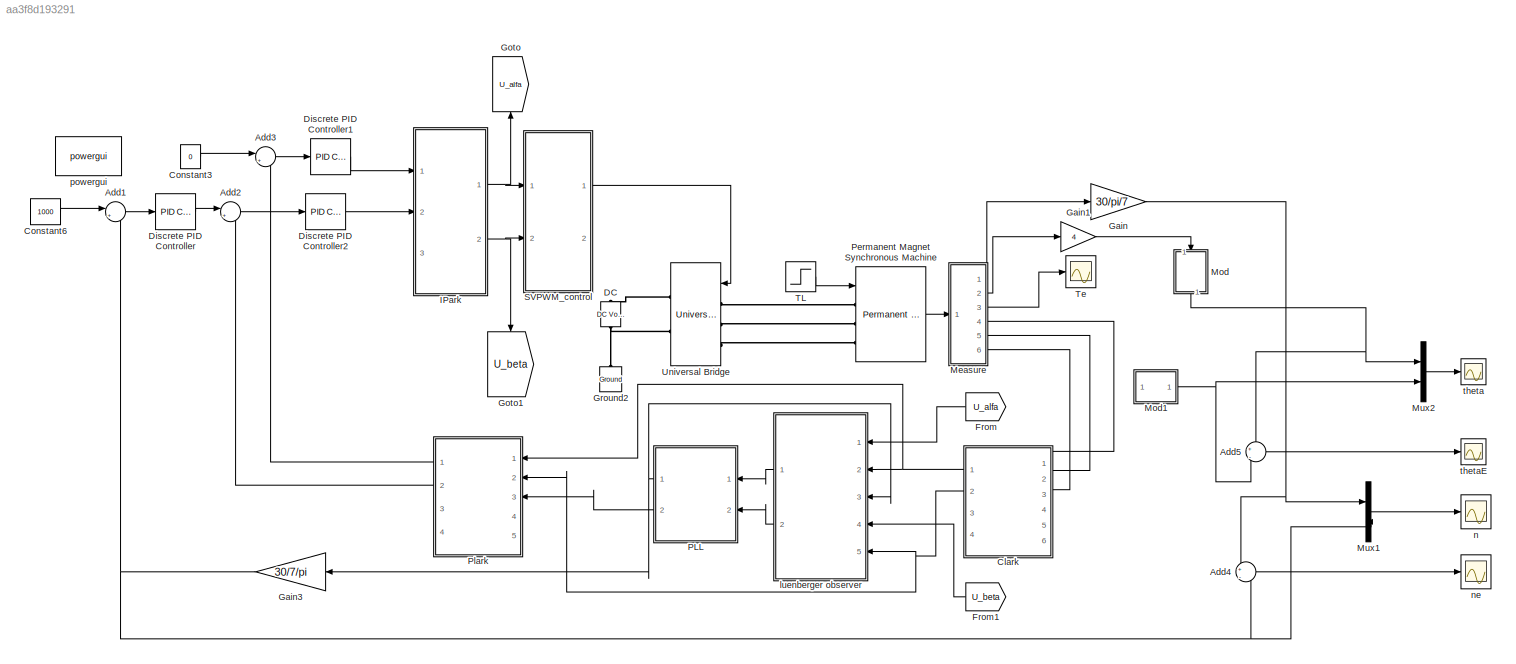
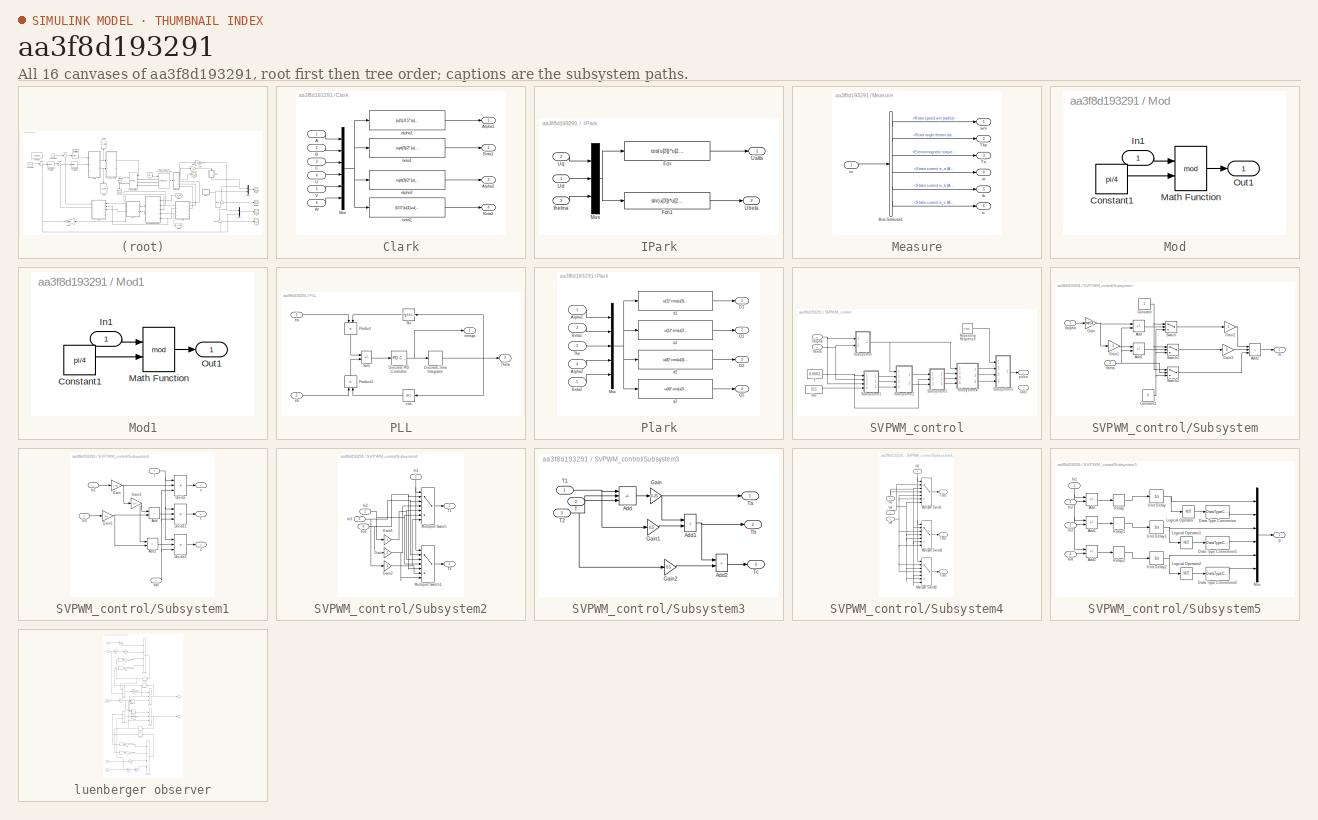
[diagram: thumbnail index - all 16 canvases of the model, root first then tree order]
MODEL slx_aa3f8d193291
KIND model
CONFIG AbsTol = auto
CONFIG EnableMultiTasking = on
CONFIG FixedStep = 2e-7
CONFIG InitFcn = R = 2.8750;\nL = 8.5e-3;
CONFIG MaxStep = auto
CONFIG MinStep = auto
CONFIG RelTol = 1e-4
CONFIG SampleTimeConstraint = Unconstrained
CONFIG SolverName = ode3
CONFIG StartTime = 0.0
CONFIG StopTime = 0.05
WORKSPACE source: mxarray member
WORKSPACE G1 = -4000
WORKSPACE G2 = 14000
WORKSPACE Param: Simulink.Parameter (value not decoded)
WORKSPACE Ts = 1e-06
BLOCK [Sum] Add1
  Inputs = |+-
  Ports = [2, 1]
BLOCK [Sum] Add2
  Inputs = |+-
  Ports = [2, 1]
BLOCK [Sum] Add3
  Inputs = |+-
  Ports = [2, 1]
BLOCK [Sum] Add4
  Inputs = +|-
  Ports = [2, 1]
BLOCK [Sum] Add5
  Inputs = +|-
  Ports = [2, 1]
BLOCK [SubSystem] Clark
  NameLocation = top
  Ports = [6, 4]
  RequestExecContextInheritance = off
BLOCK [Inport] Clark/A
BLOCK [Outport] Clark/Alpha1
BLOCK [Outport] Clark/Alpha2
  Port = 3
BLOCK [Inport] Clark/B
  Port = 2
BLOCK [Outport] Clark/Beta1
  Port = 2
BLOCK [Outport] Clark/Beta2
  Port = 4
BLOCK [Inport] Clark/C
  Port = 3
BLOCK [Mux] Clark/Mux
  DisplayOption = bar
  Inputs = 6
  Ports = [6, 1]
BLOCK [Inport] Clark/U
  Port = 4
BLOCK [Inport] Clark/V
  Port = 5
BLOCK [Inport] Clark/W
  Port = 6
BLOCK [Fcn] Clark/alpha1
  Expr = (u(1)-0.5*(u(2)+u(3)))*2/3
BLOCK [Fcn] Clark/alpha2
  Expr = sqrt(3)/2*(u(1)-u(2))*2/3
BLOCK [Fcn] Clark/beta1
  Expr = sqrt(3)/2*(u(2)-u(3))*2/3
BLOCK [Fcn] Clark/beta2
  Expr = (0.5*(u(1)+u(2))-u(3))*2/3
BLOCK [Constant] Constant3
  Value = 0
BLOCK [Constant] Constant6
  Value = 1000
BLOCK [Reference] DC   REF=spsDCVoltageSourceLib/DC Voltage Source
  NameLocation = right
  Ports = [0, 0, 0, 0, 0, 1, 1]
  SourceBlock = spsDCVoltageSourceLib/DC Voltage Source
  SourceProductBaseCode = PS
  SourceType = DC Voltage Source
BLOCK [Reference] Discrete PID Controller  REF=slpidlib/PID Controller
  Ports = [1, 1]
  SourceBlock = slpidlib/PID Controller
  SourceProductBaseCode = SL
  SourceType = PID 1dof
BLOCK [Reference] Discrete PID Controller1  REF=slpidlib/PID Controller
  Ports = [1, 1]
  SourceBlock = slpidlib/PID Controller
  SourceProductBaseCode = SL
  SourceType = PID 1dof
BLOCK [Reference] Discrete PID Controller2  REF=slpidlib/PID Controller
  Ports = [1, 1]
  SourceBlock = slpidlib/PID Controller
  SourceProductBaseCode = SL
  SourceType = PID 1dof
BLOCK [From] From
  GotoTag = U_alfa
  NameLocation = top
BLOCK [From] From1
  GotoTag = U_beta
  NameLocation = top
BLOCK [Gain] Gain
  Gain = 30/pi/7
BLOCK [Gain] Gain1
  Gain = 4
BLOCK [Gain] Gain3
  Gain = 30/7/pi
  NameLocation = top
BLOCK [Goto] Goto
  GotoTag = U_alfa
  NameLocation = right
BLOCK [Goto] Goto1
  GotoTag = U_beta
  NameLocation = left
BLOCK [Reference] Ground2  REF=spsGroundLib/Ground
  NameLocation = right
  Ports = [0, 0, 0, 0, 0, 1]
  SourceBlock = spsGroundLib/Ground
  SourceProductBaseCode = PS
  SourceType = Ground
BLOCK [SubSystem] IPark
  Ports = [3, 2]
  RequestExecContextInheritance = off
BLOCK [Fcn] IPark/Fcn
  Expr = cos(u[3])*u[2]-sin(u[3])*u[1]
BLOCK [Fcn] IPark/Fcn1
  Expr = sin(u[3])*u[2]+cos(u[3])*u[1]
BLOCK [Mux] IPark/Mux
  DisplayOption = bar
  Inputs = 3
  Ports = [3, 1]
BLOCK [Outport] IPark/Ualfa
BLOCK [Outport] IPark/Ubeta
  Port = 2
BLOCK [Inport] IPark/Ud
BLOCK [Inport] IPark/Uq
  Port = 2
BLOCK [Inport] IPark/thetma
  Port = 3
BLOCK [SubSystem] Measure
  Ports = [1, 6]
  RequestExecContextInheritance = off
BLOCK [BusSelector] Measure/Bus Selector1
  OutputSignals = Rotor speed wm (rad/s),Rotor angle thetam (rad),Electromagnetic torque Te (N*m),Stator current is_a (A),Stator current is_b (A),Stator current is_c (A)
  Ports = [1, 6]
BLOCK [Outport] Measure/Te
  Port = 3
BLOCK [Outport] Measure/The
  Port = 2
BLOCK [Outport] Measure/ia
  Port = 4
BLOCK [Outport] Measure/ib
  Port = 5
BLOCK [Outport] Measure/ic
  Port = 6
BLOCK [Inport] Measure/m
BLOCK [Outport] Measure/wm
BLOCK [SubSystem] Mod
  NameLocation = right
  Ports = [1, 1]
  RequestExecContextInheritance = off
BLOCK [Constant] Mod/Constant1
  Value = pi/4
BLOCK [Inport] Mod/In1
BLOCK [Math] Mod/Math Function
  Operator = mod
  Ports = [2, 1]
  SignedPower = on
BLOCK [Outport] Mod/Out1
BLOCK [SubSystem] Mod1
  NameLocation = top
  Ports = [1, 1]
  RequestExecContextInheritance = off
BLOCK [Constant] Mod1/Constant1
  Value = pi/4
BLOCK [Inport] Mod1/In1
BLOCK [Math] Mod1/Math Function
  Operator = mod
  Ports = [2, 1]
  SignedPower = on
BLOCK [Outport] Mod1/Out1
BLOCK [Mux] Mux1
  DisplayOption = bar
  Inputs = 2
  Ports = [2, 1]
BLOCK [Mux] Mux2
  DisplayOption = bar
  Inputs = 2
  Ports = [2, 1]
BLOCK [SubSystem] PLL
  NameLocation = top
  Ports = [2, 2]
  RequestExecContextInheritance = off
BLOCK [Reference] PLL/Discrete PID Controller  REF=slpidlib/PID Controller
  Ports = [1, 1]
  SourceBlock = slpidlib/PID Controller
  SourceProductBaseCode = SL
  SourceType = PID 1dof
BLOCK [DiscreteIntegrator] PLL/Discrete-Time Integrator
  ICPrevOutput = DiscIntNeverNeededParam
  ICPrevScaledInput = DiscIntNeverNeededParam
  InitialConditionSetting = Auto
  Ports = [1, 1]
  SampleTime = -1
BLOCK [Product] PLL/Product
  NameLocation = left
  Ports = [2, 1]
BLOCK [Product] PLL/Product1
  NameLocation = right
  Ports = [2, 1]
BLOCK [Trigonometry] PLL/Sin
  NameLocation = top
  Ports = [1, 1]
BLOCK [Sum] PLL/Sum
  IconShape = rectangular
  Inputs = -+
  Ports = [2, 1]
BLOCK [Outport] PLL/Theta
  Port = 2
BLOCK [Trigonometry] PLL/cos
  NameLocation = top
  Operator = cos
  Ports = [1, 1]
BLOCK [Inport] PLL/ea
BLOCK [Inport] PLL/eb
  Port = 2
BLOCK [Outport] PLL/omega
BLOCK [Reference] Permanent Magnet Synchronous Machine  REF=spsPermanentMagnetSynchronousMachineLib/Permanent Magnet
Synchronous Machine
  Ports = [1, 1, 0, 0, 0, 3]
  SourceBlock = spsPermanentMagnetSynchronousMachineLib/Permanent Magnet\nSynchronous Machine
  SourceProductBaseCode = PS
  SourceType = Permanent Magnet Synchronous Machine
BLOCK [SubSystem] Plark
  NameLocation = top
  Ports = [5, 4]
  RequestExecContextInheritance = off
BLOCK [Inport] Plark/Alpha1
BLOCK [Inport] Plark/Alpha2
  Port = 4
BLOCK [Inport] Plark/Beta1
  Port = 2
BLOCK [Inport] Plark/Beta2
  Port = 5
BLOCK [Outport] Plark/D1
BLOCK [Outport] Plark/D2
  Port = 3
BLOCK [Mux] Plark/Mux
  DisplayOption = bar
  Inputs = 5
  Ports = [5, 1]
BLOCK [Outport] Plark/Q1
  Port = 2
BLOCK [Outport] Plark/Q2
  Port = 4
BLOCK [Inport] Plark/The
  Port = 3
BLOCK [Fcn] Plark/d1
  Expr = u(1)*cos(u(3))+u(2)*sin(u(3))
BLOCK [Fcn] Plark/d2
  Expr = u(4)*cos(u(3))+u(5)*sin(u(3))
BLOCK [Fcn] Plark/q1
  Expr = -u(1)*sin(u(3))+u(2)*cos(u(3))
BLOCK [Fcn] Plark/q2
  Expr = -u(4)*sin(u(3))+u(5)*cos(u(3))
BLOCK [SubSystem] SVPWM_control
  Ports = [2, 2]
  RequestExecContextInheritance = off
BLOCK [Outport] SVPWM_control/Out2
  Port = 2
BLOCK [Reference] SVPWM_control/Repeating Sequence  REF=simulink/Sources/Repeating
Sequence
  Ports = [0, 1]
  SourceBlock = simulink/Sources/Repeating\nSequence
  SourceProductBaseCode = SL
  SourceType = Repeating table
BLOCK [SubSystem] SVPWM_control/Subsystem
  Ports = [2, 1]
  RequestExecContextInheritance = off
BLOCK [Sum] SVPWM_control/Subsystem/Add
  IconShape = rectangular
  Inputs = +-
  Ports = [2, 1]
BLOCK [Sum] SVPWM_control/Subsystem/Add1
  IconShape = rectangular
  Inputs = +-
  Ports = [2, 1]
BLOCK [Sum] SVPWM_control/Subsystem/Add2
  IconShape = rectangular
  Inputs = +++
  Ports = [3, 1]
BLOCK [Constant] SVPWM_control/Subsystem/Constant
BLOCK [Constant] SVPWM_control/Subsystem/Constant1
  NameLocation = top
  Value = 0
BLOCK [Gain] SVPWM_control/Subsystem/Gain
  Gain = sqrt(3)
BLOCK [Gain] SVPWM_control/Subsystem/Gain1
  Gain = -1
BLOCK [Gain] SVPWM_control/Subsystem/Gain2
  Gain = 2
BLOCK [Gain] SVPWM_control/Subsystem/Gain3
  Gain = 4
BLOCK [Outport] SVPWM_control/Subsystem/N
BLOCK [Switch] SVPWM_control/Subsystem/Switch
  Criteria = u2 > Threshold
  InputSameDT = off
  SaturateOnIntegerOverflow = off
BLOCK [Switch] SVPWM_control/Subsystem/Switch1
  Criteria = u2 > Threshold
  InputSameDT = off
  SaturateOnIntegerOverflow = off
BLOCK [Switch] SVPWM_control/Subsystem/Switch2
  Criteria = u2 > Threshold
  InputSameDT = off
  SaturateOnIntegerOverflow = off
BLOCK [Inport] SVPWM_control/Subsystem/Valpha
BLOCK [Inport] SVPWM_control/Subsystem/Vbeta
  Port = 2
BLOCK [SubSystem] SVPWM_control/Subsystem1
  Ports = [4, 3]
  RequestExecContextInheritance = off
BLOCK [Sum] SVPWM_control/Subsystem1/Add
  IconShape = rectangular
  Ports = [2, 1]
BLOCK [Sum] SVPWM_control/Subsystem1/Add1
  IconShape = rectangular
  Inputs = +-
  Ports = [2, 1]
BLOCK [Product] SVPWM_control/Subsystem1/Divide
  Inputs = **/
  Ports = [3, 1]
BLOCK [Product] SVPWM_control/Subsystem1/Divide1
  Inputs = **/
  Ports = [3, 1]
BLOCK [Product] SVPWM_control/Subsystem1/Divide2
  Inputs = **/
  Ports = [3, 1]
BLOCK [Gain] SVPWM_control/Subsystem1/Gain
  Gain = 1.732
BLOCK [Gain] SVPWM_control/Subsystem1/Gain1
  Gain = 1.5
BLOCK [Gain] SVPWM_control/Subsystem1/Gain2
  Gain = 0.5
BLOCK [Inport] SVPWM_control/Subsystem1/In2
  Port = 2
BLOCK [Inport] SVPWM_control/Subsystem1/In3
  Port = 3
BLOCK [Inport] SVPWM_control/Subsystem1/T
BLOCK [Inport] SVPWM_control/Subsystem1/Vdc
  Port = 4
BLOCK [Outport] SVPWM_control/Subsystem1/Y
  Port = 2
BLOCK [Outport] SVPWM_control/Subsystem1/Z
  Port = 3
BLOCK [Outport] SVPWM_control/Subsystem1/x
BLOCK [SubSystem] SVPWM_control/Subsystem2
  Ports = [4, 2]
  RequestExecContextInheritance = off
BLOCK [Gain] SVPWM_control/Subsystem2/Gain
  Gain = -1
BLOCK [Gain] SVPWM_control/Subsystem2/Gain1
  Gain = -1
BLOCK [Gain] SVPWM_control/Subsystem2/Gain2
  Gain = -1
BLOCK [Inport] SVPWM_control/Subsystem2/In1
  NameLocation = right
BLOCK [Inport] SVPWM_control/Subsystem2/In2
  Port = 2
BLOCK [Inport] SVPWM_control/Subsystem2/In3
  Port = 3
BLOCK [Inport] SVPWM_control/Subsystem2/In4
  Port = 4
BLOCK [MultiPortSwitch] SVPWM_control/Subsystem2/Multiport Switch
  InputSameDT = off
  Inputs = 6
  Ports = [7, 1]
  SaturateOnIntegerOverflow = off
BLOCK [MultiPortSwitch] SVPWM_control/Subsystem2/Multiport Switch1
  InputSameDT = off
  Inputs = 6
  Ports = [7, 1]
  SaturateOnIntegerOverflow = off
BLOCK [Outport] SVPWM_control/Subsystem2/T1
BLOCK [Outport] SVPWM_control/Subsystem2/T2
  Port = 2
BLOCK [SubSystem] SVPWM_control/Subsystem3
  Ports = [3, 3]
  RequestExecContextInheritance = off
BLOCK [Sum] SVPWM_control/Subsystem3/Add
  IconShape = rectangular
  Inputs = --+
  Ports = [3, 1]
BLOCK [Sum] SVPWM_control/Subsystem3/Add1
  IconShape = rectangular
  Ports = [2, 1]
BLOCK [Sum] SVPWM_control/Subsystem3/Add2
  IconShape = rectangular
  Ports = [2, 1]
BLOCK [Gain] SVPWM_control/Subsystem3/Gain
  Gain = 0.25
BLOCK [Gain] SVPWM_control/Subsystem3/Gain1
  Gain = 0.5
BLOCK [Gain] SVPWM_control/Subsystem3/Gain2
  Gain = 0.5
BLOCK [Inport] SVPWM_control/Subsystem3/T
  Port = 2
BLOCK [Inport] SVPWM_control/Subsystem3/T1
BLOCK [Inport] SVPWM_control/Subsystem3/T2
  Port = 3
BLOCK [Outport] SVPWM_control/Subsystem3/Ta
BLOCK [Outport] SVPWM_control/Subsystem3/Tb
  Port = 2
BLOCK [Outport] SVPWM_control/Subsystem3/Tc
  Port = 3
BLOCK [SubSystem] SVPWM_control/Subsystem4
  Ports = [4, 3]
  RequestExecContextInheritance = off
BLOCK [Inport] SVPWM_control/Subsystem4/In1
  NameLocation = right
BLOCK [Inport] SVPWM_control/Subsystem4/In2
  NameLocation = right
  Port = 2
BLOCK [Inport] SVPWM_control/Subsystem4/In3
  NameLocation = right
  Port = 3
BLOCK [Inport] SVPWM_control/Subsystem4/In4
  Port = 4
BLOCK [MultiPortSwitch] SVPWM_control/Subsystem4/Multiport Switch
  InputSameDT = off
  Inputs = 6
  Ports = [7, 1]
  SaturateOnIntegerOverflow = off
BLOCK [MultiPortSwitch] SVPWM_control/Subsystem4/Multiport Switch1
  InputSameDT = off
  Inputs = 6
  Ports = [7, 1]
  SaturateOnIntegerOverflow = off
BLOCK [MultiPortSwitch] SVPWM_control/Subsystem4/Multiport Switch2
  InputSameDT = off
  Inputs = 6
  Ports = [7, 1]
  SaturateOnIntegerOverflow = off
BLOCK [Outport] SVPWM_control/Subsystem4/Tcm1
BLOCK [Outport] SVPWM_control/Subsystem4/Tcm2
  Port = 2
BLOCK [Outport] SVPWM_control/Subsystem4/Tcm3
  Port = 3
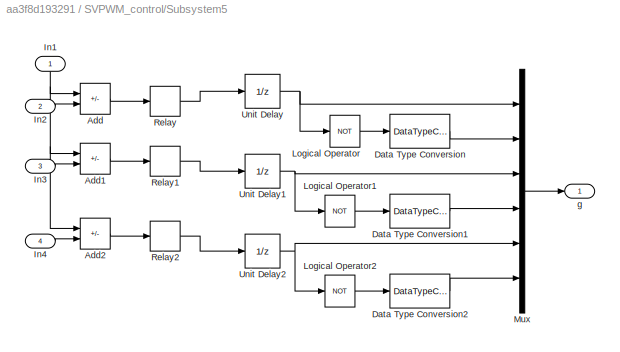
BLOCK [SubSystem] SVPWM_control/Subsystem5
  Ports = [4, 1]
  RequestExecContextInheritance = off
BLOCK [Sum] SVPWM_control/Subsystem5/Add
  IconShape = rectangular
  Inputs = +-
  Ports = [2, 1]
BLOCK [Sum] SVPWM_control/Subsystem5/Add1
  IconShape = rectangular
  Inputs = +-
  Ports = [2, 1]
BLOCK [Sum] SVPWM_control/Subsystem5/Add2
  IconShape = rectangular
  Inputs = +-
  Ports = [2, 1]
BLOCK [DataTypeConversion] SVPWM_control/Subsystem5/Data Type Conversion
  OutDataTypeStr = double
  RndMeth = Floor
  SaturateOnIntegerOverflow = off
BLOCK [DataTypeConversion] SVPWM_control/Subsystem5/Data Type Conversion1
  OutDataTypeStr = double
  RndMeth = Floor
  SaturateOnIntegerOverflow = off
BLOCK [DataTypeConversion] SVPWM_control/Subsystem5/Data Type Conversion2
  OutDataTypeStr = double
  RndMeth = Floor
  SaturateOnIntegerOverflow = off
BLOCK [Inport] SVPWM_control/Subsystem5/In1
  NameLocation = right
BLOCK [Inport] SVPWM_control/Subsystem5/In2
  Port = 2
BLOCK [Inport] SVPWM_control/Subsystem5/In3
  Port = 3
BLOCK [Inport] SVPWM_control/Subsystem5/In4
  Port = 4
BLOCK [Logic] SVPWM_control/Subsystem5/Logical Operator
  AllPortsSameDT = off
  Operator = NOT
  OutDataTypeStr = boolean
  Ports = [1, 1]
BLOCK [Logic] SVPWM_control/Subsystem5/Logical Operator1
  AllPortsSameDT = off
  Operator = NOT
  OutDataTypeStr = boolean
  Ports = [1, 1]
BLOCK [Logic] SVPWM_control/Subsystem5/Logical Operator2
  AllPortsSameDT = off
  Operator = NOT
  OutDataTypeStr = boolean
  Ports = [1, 1]
BLOCK [Mux] SVPWM_control/Subsystem5/Mux
  DisplayOption = bar
  Inputs = 6
  Ports = [6, 1]
BLOCK [Relay] SVPWM_control/Subsystem5/Relay
  OffSwitchValue = -eps
BLOCK [Relay] SVPWM_control/Subsystem5/Relay1
  OffSwitchValue = -eps
BLOCK [Relay] SVPWM_control/Subsystem5/Relay2
  OffSwitchValue = -eps
BLOCK [UnitDelay] SVPWM_control/Subsystem5/Unit Delay
  HasFrameUpgradeWarning = on
  SampleTime = -1
BLOCK [UnitDelay] SVPWM_control/Subsystem5/Unit Delay1
  HasFrameUpgradeWarning = on
  SampleTime = -1
BLOCK [UnitDelay] SVPWM_control/Subsystem5/Unit Delay2
  HasFrameUpgradeWarning = on
  SampleTime = -1
BLOCK [Outport] SVPWM_control/Subsystem5/g
BLOCK [Constant] SVPWM_control/T
  Value = 0.0001
BLOCK [Inport] SVPWM_control/Valpha
BLOCK [Inport] SVPWM_control/Vbeta
  Port = 2
BLOCK [Constant] SVPWM_control/Vdc
  Value = 311
BLOCK [Outport] SVPWM_control/pulse
BLOCK [Step] TL
  After = 0
  NameLocation = top
  SampleTime = 0
  Time = 0.05
BLOCK [Scope] Te
  Floating = off
  NumInputPorts = 1
  Ports = [1]
  ScopeSpecificationString = C++SS(StrPVP('Location','[11, 60, 1035, 747]'),StrPVP('Open','off'),MxPVP('AxesTitles',54,'struct(''axes1'',''%<SignalLabel>'')'),MxPVP('ScopeGraphics',57,'struct(''FigureColor'',''[0.5 0.5 0.5]'',''AxesColor'',''[0 0 0]'',''AxesTickColor'',''[1 1 1]'',''LineColors'',''[1 1 0;1 0 1;0 1 1;1 0 0;0 1 0;0 0 1]'',''LineStyles'',''-|-|-|-|-|-'',''LineWidths'',''[0.5 0.5 0.5 0.5 0.5 0.5]'',''MarkerStyles...<+363ch>
BLOCK [Reference] Universal Bridge  REF=spsUniversalBridgeLib/Universal Bridge
  NameLocation = top
  Ports = [1, 0, 0, 0, 0, 3, 2]
  SourceBlock = spsUniversalBridgeLib/Universal Bridge
  SourceProductBaseCode = PS
  SourceType = Universal Bridge
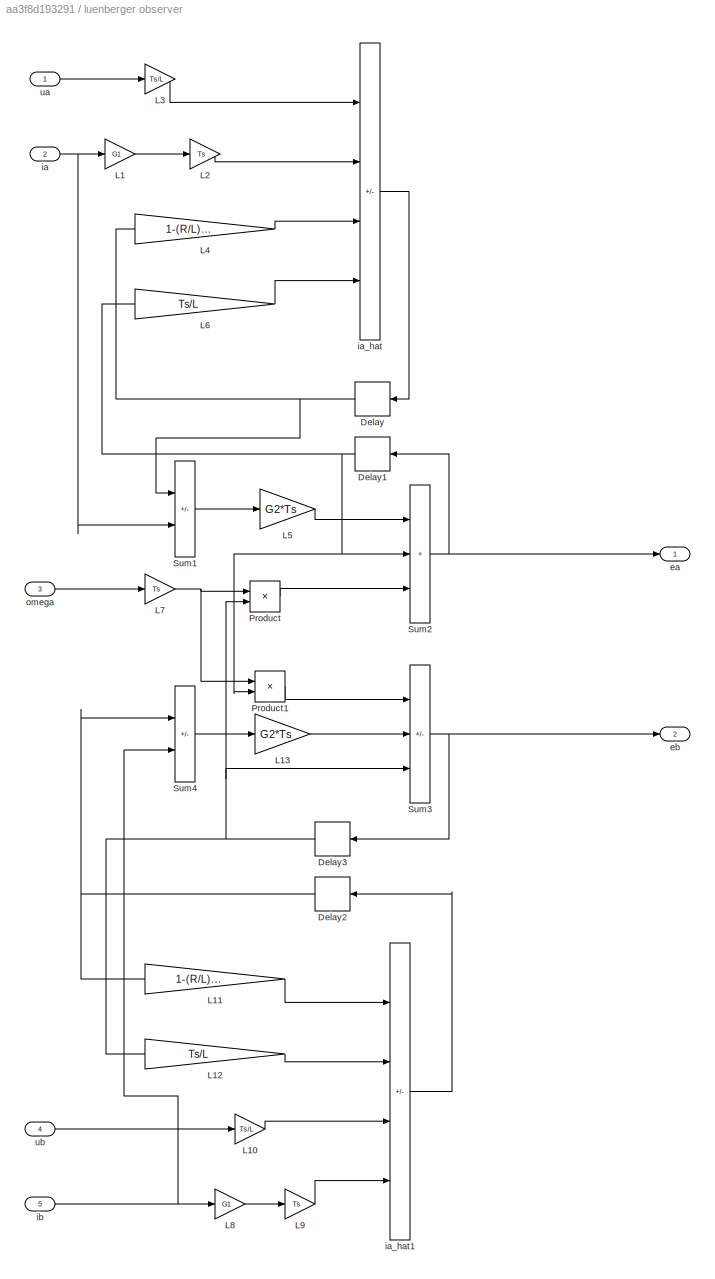
BLOCK [SubSystem] luenberger observer
  NameLocation = top
  Ports = [5, 2]
  RequestExecContextInheritance = off
BLOCK [Delay] luenberger observer/Delay
  DelayLength = 1
  InitialCondition = 0
  InputPortMap = u0
  NameLocation = top
  Ports = [1, 1]
BLOCK [Delay] luenberger observer/Delay1
  DelayLength = 1
  InitialCondition = 0
  InputPortMap = u0
  NameLocation = top
  Ports = [1, 1]
BLOCK [Delay] luenberger observer/Delay2
  DelayLength = 1
  InitialCondition = 0
  InputPortMap = u0
  NameLocation = top
  Ports = [1, 1]
BLOCK [Delay] luenberger observer/Delay3
  DelayLength = 1
  InitialCondition = 0
  InputPortMap = u0
  NameLocation = top
  Ports = [1, 1]
BLOCK [Gain] luenberger observer/L1
  Gain = G1
BLOCK [Gain] luenberger observer/L10
  Gain = Ts/L
BLOCK [Gain] luenberger observer/L11
  Gain = 1-(R/L)*Ts+G1*Ts
BLOCK [Gain] luenberger observer/L12
  Gain = Ts/L
BLOCK [Gain] luenberger observer/L13
  Gain = G2*Ts
BLOCK [Gain] luenberger observer/L2
  Gain = Ts
BLOCK [Gain] luenberger observer/L3
  Gain = Ts/L
BLOCK [Gain] luenberger observer/L4
  Gain = 1-(R/L)*Ts+G1*Ts
BLOCK [Gain] luenberger observer/L5
  Gain = G2*Ts
BLOCK [Gain] luenberger observer/L6
  Gain = Ts/L
BLOCK [Gain] luenberger observer/L7
  Gain = Ts
BLOCK [Gain] luenberger observer/L8
  Gain = G1
BLOCK [Gain] luenberger observer/L9
  Gain = Ts
BLOCK [Product] luenberger observer/Product
  Ports = [2, 1]
BLOCK [Product] luenberger observer/Product1
  Ports = [2, 1]
BLOCK [Sum] luenberger observer/Sum1
  IconShape = rectangular
  Inputs = +-
  Ports = [2, 1]
BLOCK [Sum] luenberger observer/Sum2
  IconShape = rectangular
  Inputs = +++
  Ports = [3, 1]
BLOCK [Sum] luenberger observer/Sum3
  IconShape = rectangular
  Inputs = -++
  Ports = [3, 1]
BLOCK [Sum] luenberger observer/Sum4
  IconShape = rectangular
  Inputs = +-
  Ports = [2, 1]
BLOCK [Outport] luenberger observer/ea
BLOCK [Outport] luenberger observer/eb
  Port = 2
BLOCK [Inport] luenberger observer/ia
  Port = 2
BLOCK [Sum] luenberger observer/ia_hat
  IconShape = rectangular
  Inputs = +-+-
  Ports = [4, 1]
BLOCK [Sum] luenberger observer/ia_hat1
  IconShape = rectangular
  Inputs = +-+-
  Ports = [4, 1]
BLOCK [Inport] luenberger observer/ib
  Port = 5
BLOCK [Inport] luenberger observer/omega
  Port = 3
BLOCK [Inport] luenberger observer/ua
BLOCK [Inport] luenberger observer/ub
  Port = 4
BLOCK [Scope] n
  Floating = off
  NameLocation = top
  NumInputPorts = 1
  Ports = [1]
  ScopeSpecificationString = Simulink.scopes.TimeScopeBlockCfg('CurrentConfiguration', extmgr.ConfigurationSet(extmgr.Configuration('Core','General UI',true),extmgr.Configuration('Core','Source UI',true),extmgr.Configuration('Sources','WiredSimulink',true,'DataLogging',true,'DataLoggingVariableName','wm','DataLoggingSaveFormat','StructureWithTime','DataLoggingDecimation','1','DataLoggingDecimateData',true),extmgr.Configuratio...<+1587ch>
BLOCK [Scope] ne
  Floating = off
  NumInputPorts = 1
  Ports = [1]
  ScopeSpecificationString = Simulink.scopes.TimeScopeBlockCfg('CurrentConfiguration', extmgr.ConfigurationSet(extmgr.Configuration('Core','General UI',true),extmgr.Configuration('Core','Source UI',true),extmgr.Configuration('Sources','WiredSimulink',true,'DataLogging',true,'DataLoggingVariableName','wme','DataLoggingSaveFormat','StructureWithTime','DataLoggingDecimation','1','DataLoggingDecimateData',true),extmgr.Configurati...<+1606ch>
BLOCK [Reference] powergui  REF=spspowerguiLib/powergui
  Ports = []
  Priority = 1
  SourceBlock = spspowerguiLib/powergui
  SourceProductBaseCode = PS
  SourceType = PSB option menu block
BLOCK [Scope] theta
  Floating = off
  NumInputPorts = 1
  Ports = [1]
  ScopeSpecificationString = Simulink.scopes.TimeScopeBlockCfg('CurrentConfiguration', extmgr.ConfigurationSet(extmgr.Configuration('Core','General UI',true),extmgr.Configuration('Core','Source UI',true),extmgr.Configuration('Sources','WiredSimulink',true,'DataLogging',true,'DataLoggingVariableName','The','DataLoggingSaveFormat','StructureWithTime','DataLoggingDecimation','1','DataLoggingDecimateData',true),extmgr.Configurati...<+1728ch>
BLOCK [Scope] thetaE
  Floating = off
  NumInputPorts = 1
  Ports = [1]
  ScopeSpecificationString = Simulink.scopes.TimeScopeBlockCfg('CurrentConfiguration', extmgr.ConfigurationSet(extmgr.Configuration('Core','General UI',true),extmgr.Configuration('Core','Source UI',true),extmgr.Configuration('Sources','WiredSimulink',true,'DataLogging',true,'DataLoggingVariableName','Thee','DataLoggingSaveFormat','StructureWithTime','DataLoggingDecimation','1','DataLoggingDecimateData',true),extmgr.Configurat...<+1713ch>
LINE Add1:1 -> Discrete PID Controller:1
LINE Add2:1 -> Discrete PID Controller2:1
LINE Add3:1 -> Discrete PID Controller1:1
LINE Add4:1 -> ne:1
LINE Add5:1 -> thetaE:1
LINE Clark/A:1 -> Clark/Mux:1
LINE Clark/B:1 -> Clark/Mux:2
LINE Clark/C:1 -> Clark/Mux:3
NET Clark/Mux:1 -> Clark/alpha1:1, Clark/alpha2:1, Clark/beta1:1, Clark/beta2:1
LINE Clark/U:1 -> Clark/Mux:4
LINE Clark/V:1 -> Clark/Mux:5
LINE Clark/W:1 -> Clark/Mux:6
LINE Clark/alpha1:1 -> Clark/Alpha1:1
LINE Clark/alpha2:1 -> Clark/Alpha2:1
LINE Clark/beta1:1 -> Clark/Beta1:1
LINE Clark/beta2:1 -> Clark/Beta2:1
NET Clark:1 -> Plark:1, luenberger observer:2
NET Clark:2 -> Plark:2, luenberger observer:5
LINE Constant3:1 -> Add3:1
LINE Constant6:1 -> Add1:1
LINE Discrete PID Controller1:1 -> IPark:1
LINE Discrete PID Controller2:1 -> IPark:2
LINE Discrete PID Controller:1 -> Add2:1
LINE From1:1 -> luenberger observer:4
LINE From:1 -> luenberger observer:1
LINE Gain1:1 -> Mod:1
NET Gain3:1 -> Add1:2, Add4:2, Mux1:2
NET Gain:1 -> Add4:1, Mux1:1
LINE IPark/Fcn1:1 -> IPark/Ubeta:1
LINE IPark/Fcn:1 -> IPark/Ualfa:1
NET IPark/Mux:1 -> IPark/Fcn1:1, IPark/Fcn:1
LINE IPark/Ud:1 -> IPark/Mux:2
LINE IPark/Uq:1 -> IPark/Mux:1
LINE IPark/thetma:1 -> IPark/Mux:3
NET IPark:1 -> Goto:1, SVPWM_control:1
NET IPark:2 -> Goto1:1, SVPWM_control:2
LINE Measure/Bus Selector1:1 -> Measure/wm:1
LINE Measure/Bus Selector1:2 -> Measure/The:1
LINE Measure/Bus Selector1:3 -> Measure/Te:1
LINE Measure/Bus Selector1:4 -> Measure/ia:1
LINE Measure/Bus Selector1:5 -> Measure/ib:1
LINE Measure/Bus Selector1:6 -> Measure/ic:1
LINE Measure/m:1 -> Measure/Bus Selector1:1
LINE Measure:1 -> Gain:1
LINE Measure:2 -> Gain1:1
LINE Measure:3 -> Te:1
LINE Measure:4 -> Clark:1
LINE Measure:5 -> Clark:2
LINE Measure:6 -> Clark:3
LINE Mod/Constant1:1 -> Mod/Math Function:2
LINE Mod/In1:1 -> Mod/Math Function:1
LINE Mod/Math Function:1 -> Mod/Out1:1
LINE Mod1/Constant1:1 -> Mod1/Math Function:2
LINE Mod1/In1:1 -> Mod1/Math Function:1
LINE Mod1/Math Function:1 -> Mod1/Out1:1
NET Mod1:1 -> Add5:2, Mux2:2
NET Mod:1 -> Add5:1, Mux2:1
LINE Mux1:1 -> n:1
LINE Mux2:1 -> theta:1
NET PLL/Discrete PID Controller:1 -> PLL/Discrete-Time Integrator:1, PLL/omega:1
NET PLL/Discrete-Time Integrator:1 -> PLL/Sin:1, PLL/Theta:1, PLL/cos:1
LINE PLL/Product1:1 -> PLL/Sum:2
LINE PLL/Product:1 -> PLL/Sum:1
LINE PLL/Sin:1 -> PLL/Product:2
LINE PLL/Sum:1 -> PLL/Discrete PID Controller:1
LINE PLL/cos:1 -> PLL/Product1:2
LINE PLL/ea:1 -> PLL/Product:1
LINE PLL/eb:1 -> PLL/Product1:1
NET PLL:1 -> Gain3:1, luenberger observer:3
LINE PLL:2 -> Plark:3
LINE Permanent Magnet Synchronous Machine:1 -> Measure:1
LINE Plark/Alpha1:1 -> Plark/Mux:1
LINE Plark/Alpha2:1 -> Plark/Mux:4
LINE Plark/Beta1:1 -> Plark/Mux:2
LINE Plark/Beta2:1 -> Plark/Mux:5
NET Plark/Mux:1 -> Plark/d1:1, Plark/d2:1, Plark/q1:1, Plark/q2:1
LINE Plark/The:1 -> Plark/Mux:3
LINE Plark/d1:1 -> Plark/D1:1
LINE Plark/d2:1 -> Plark/D2:1
LINE Plark/q1:1 -> Plark/Q1:1
LINE Plark/q2:1 -> Plark/Q2:1
LINE Plark:1 -> Add3:2
LINE Plark:2 -> Add2:2
LINE SVPWM_control/Repeating Sequence:1 -> SVPWM_control/Subsystem5:1
LINE SVPWM_control/Subsystem/Add1:1 -> SVPWM_control/Subsystem/Switch1:2
LINE SVPWM_control/Subsystem/Add2:1 -> SVPWM_control/Subsystem/N:1
LINE SVPWM_control/Subsystem/Add:1 -> SVPWM_control/Subsystem/Switch:2
NET SVPWM_control/Subsystem/Constant1:1 -> SVPWM_control/Subsystem/Switch1:3, SVPWM_control/Subsystem/Switch2:3, SVPWM_control/Subsystem/Switch:3
NET SVPWM_control/Subsystem/Constant:1 -> SVPWM_control/Subsystem/Switch1:1, SVPWM_control/Subsystem/Switch2:1, SVPWM_control/Subsystem/Switch:1
LINE SVPWM_control/Subsystem/Gain1:1 -> SVPWM_control/Subsystem/Add1:1
LINE SVPWM_control/Subsystem/Gain2:1 -> SVPWM_control/Subsystem/Add2:1
LINE SVPWM_control/Subsystem/Gain3:1 -> SVPWM_control/Subsystem/Add2:2
NET SVPWM_control/Subsystem/Gain:1 -> SVPWM_control/Subsystem/Add:1, SVPWM_control/Subsystem/Gain1:1
LINE SVPWM_control/Subsystem/Switch1:1 -> SVPWM_control/Subsystem/Gain3:1
LINE SVPWM_control/Subsystem/Switch2:1 -> SVPWM_control/Subsystem/Add2:3
LINE SVPWM_control/Subsystem/Switch:1 -> SVPWM_control/Subsystem/Gain2:1
LINE SVPWM_control/Subsystem/Valpha:1 -> SVPWM_control/Subsystem/Gain:1
NET SVPWM_control/Subsystem/Vbeta:1 -> SVPWM_control/Subsystem/Add1:2, SVPWM_control/Subsystem/Add:2, SVPWM_control/Subsystem/Switch2:2
LINE SVPWM_control/Subsystem1/Add1:1 -> SVPWM_control/Subsystem1/Divide2:2
LINE SVPWM_control/Subsystem1/Add:1 -> SVPWM_control/Subsystem1/Divide1:2
LINE SVPWM_control/Subsystem1/Divide1:1 -> SVPWM_control/Subsystem1/Y:1
LINE SVPWM_control/Subsystem1/Divide2:1 -> SVPWM_control/Subsystem1/Z:1
LINE SVPWM_control/Subsystem1/Divide:1 -> SVPWM_control/Subsystem1/x:1
NET SVPWM_control/Subsystem1/Gain1:1 -> SVPWM_control/Subsystem1/Add1:2, SVPWM_control/Subsystem1/Add:2
NET SVPWM_control/Subsystem1/Gain2:1 -> SVPWM_control/Subsystem1/Add1:1, SVPWM_control/Subsystem1/Add:1
NET SVPWM_control/Subsystem1/Gain:1 -> SVPWM_control/Subsystem1/Divide:2, SVPWM_control/Subsystem1/Gain2:1
LINE SVPWM_control/Subsystem1/In2:1 -> SVPWM_control/Subsystem1/Gain:1
LINE SVPWM_control/Subsystem1/In3:1 -> SVPWM_control/Subsystem1/Gain1:1
NET SVPWM_control/Subsystem1/T:1 -> SVPWM_control/Subsystem1/Divide1:1, SVPWM_control/Subsystem1/Divide2:1, SVPWM_control/Subsystem1/Divide:1
NET SVPWM_control/Subsystem1/Vdc:1 -> SVPWM_control/Subsystem1/Divide1:3, SVPWM_control/Subsystem1/Divide2:3, SVPWM_control/Subsystem1/Divide:3
LINE SVPWM_control/Subsystem1:1 -> SVPWM_control/Subsystem2:2
LINE SVPWM_control/Subsystem1:2 -> SVPWM_control/Subsystem2:3
LINE SVPWM_control/Subsystem1:3 -> SVPWM_control/Subsystem2:4
NET SVPWM_control/Subsystem2/Gain1:1 -> SVPWM_control/Subsystem2/Multiport Switch1:3, SVPWM_control/Subsystem2/Multiport Switch:5
NET SVPWM_control/Subsystem2/Gain2:1 -> SVPWM_control/Subsystem2/Multiport Switch1:6, SVPWM_control/Subsystem2/Multiport Switch:7
NET SVPWM_control/Subsystem2/Gain:1 -> SVPWM_control/Subsystem2/Multiport Switch1:7, SVPWM_control/Subsystem2/Multiport Switch:4
NET SVPWM_control/Subsystem2/In1:1 -> SVPWM_control/Subsystem2/Multiport Switch1:1, SVPWM_control/Subsystem2/Multiport Switch:1
NET SVPWM_control/Subsystem2/In2:1 -> SVPWM_control/Subsystem2/Gain1:1, SVPWM_control/Subsystem2/Multiport Switch1:4, SVPWM_control/Subsystem2/Multiport Switch:6
NET SVPWM_control/Subsystem2/In3:1 -> SVPWM_control/Subsystem2/Gain2:1, SVPWM_control/Subsystem2/Multiport Switch1:2, SVPWM_control/Subsystem2/Multiport Switch:3
NET SVPWM_control/Subsystem2/In4:1 -> SVPWM_control/Subsystem2/Gain:1, SVPWM_control/Subsystem2/Multiport Switch1:5, SVPWM_control/Subsystem2/Multiport Switch:2
LINE SVPWM_control/Subsystem2/Multiport Switch1:1 -> SVPWM_control/Subsystem2/T2:1
LINE SVPWM_control/Subsystem2/Multiport Switch:1 -> SVPWM_control/Subsystem2/T1:1
LINE SVPWM_control/Subsystem2:1 -> SVPWM_control/Subsystem3:1
LINE SVPWM_control/Subsystem2:2 -> SVPWM_control/Subsystem3:3
NET SVPWM_control/Subsystem3/Add1:1 -> SVPWM_control/Subsystem3/Add2:1, SVPWM_control/Subsystem3/Tb:1
LINE SVPWM_control/Subsystem3/Add2:1 -> SVPWM_control/Subsystem3/Tc:1
LINE SVPWM_control/Subsystem3/Add:1 -> SVPWM_control/Subsystem3/Gain:1
LINE SVPWM_control/Subsystem3/Gain1:1 -> SVPWM_control/Subsystem3/Add1:2
LINE SVPWM_control/Subsystem3/Gain2:1 -> SVPWM_control/Subsystem3/Add2:2
NET SVPWM_control/Subsystem3/Gain:1 -> SVPWM_control/Subsystem3/Add1:1, SVPWM_control/Subsystem3/Ta:1
NET SVPWM_control/Subsystem3/T1:1 -> SVPWM_control/Subsystem3/Add:1, SVPWM_control/Subsystem3/Gain1:1
NET SVPWM_control/Subsystem3/T2:1 -> SVPWM_control/Subsystem3/Add:2, SVPWM_control/Subsystem3/Gain2:1
LINE SVPWM_control/Subsystem3/T:1 -> SVPWM_control/Subsystem3/Add:3
LINE SVPWM_control/Subsystem3:1 -> SVPWM_control/Subsystem4:2
LINE SVPWM_control/Subsystem3:2 -> SVPWM_control/Subsystem4:3
LINE SVPWM_control/Subsystem3:3 -> SVPWM_control/Subsystem4:4
NET SVPWM_control/Subsystem4/In1:1 -> SVPWM_control/Subsystem4/Multiport Switch1:1, SVPWM_control/Subsystem4/Multiport Switch2:1, SVPWM_control/Subsystem4/Multiport Switch:1
NET SVPWM_control/Subsystem4/In2:1 -> SVPWM_control/Subsystem4/Multiport Switch1:2, SVPWM_control/Subsystem4/Multiport Switch1:6, SVPWM_control/Subsystem4/Multiport Switch2:5, SVPWM_control/Subsystem4/Multiport Switch2:7, SVPWM_control/Subsystem4/Multiport Switch:3, SVPWM_control/Subsystem4/Multiport Switch:4
NET SVPWM_control/Subsystem4/In3:1 -> SVPWM_control/Subsystem4/Multiport Switch1:4, SVPWM_control/Subsystem4/Multiport Switch1:5, SVPWM_control/Subsystem4/Multiport Switch2:3, SVPWM_control/Subsystem4/Multiport Switch2:6, SVPWM_control/Subsystem4/Multiport Switch:2, SVPWM_control/Subsystem4/Multiport Switch:7
NET SVPWM_control/Subsystem4/In4:1 -> SVPWM_control/Subsystem4/Multiport Switch1:3, SVPWM_control/Subsystem4/Multiport Switch1:7, SVPWM_control/Subsystem4/Multiport Switch2:2, SVPWM_control/Subsystem4/Multiport Switch2:4, SVPWM_control/Subsystem4/Multiport Switch:5, SVPWM_control/Subsystem4/Multiport Switch:6
LINE SVPWM_control/Subsystem4/Multiport Switch1:1 -> SVPWM_control/Subsystem4/Tcm2:1
LINE SVPWM_control/Subsystem4/Multiport Switch2:1 -> SVPWM_control/Subsystem4/Tcm3:1
LINE SVPWM_control/Subsystem4/Multiport Switch:1 -> SVPWM_control/Subsystem4/Tcm1:1
LINE SVPWM_control/Subsystem4:1 -> SVPWM_control/Subsystem5:2
LINE SVPWM_control/Subsystem4:2 -> SVPWM_control/Subsystem5:3
LINE SVPWM_control/Subsystem4:3 -> SVPWM_control/Subsystem5:4
LINE SVPWM_control/Subsystem5/Add1:1 -> SVPWM_control/Subsystem5/Relay1:1
LINE SVPWM_control/Subsystem5/Add2:1 -> SVPWM_control/Subsystem5/Relay2:1
LINE SVPWM_control/Subsystem5/Add:1 -> SVPWM_control/Subsystem5/Relay:1
LINE SVPWM_control/Subsystem5/Data Type Conversion1:1 -> SVPWM_control/Subsystem5/Mux:4
LINE SVPWM_control/Subsystem5/Data Type Conversion2:1 -> SVPWM_control/Subsystem5/Mux:6
LINE SVPWM_control/Subsystem5/Data Type Conversion:1 -> SVPWM_control/Subsystem5/Mux:2
NET SVPWM_control/Subsystem5/In1:1 -> SVPWM_control/Subsystem5/Add1:1, SVPWM_control/Subsystem5/Add2:1, SVPWM_control/Subsystem5/Add:1
LINE SVPWM_control/Subsystem5/In2:1 -> SVPWM_control/Subsystem5/Add:2
LINE SVPWM_control/Subsystem5/In3:1 -> SVPWM_control/Subsystem5/Add1:2
LINE SVPWM_control/Subsystem5/In4:1 -> SVPWM_control/Subsystem5/Add2:2
LINE SVPWM_control/Subsystem5/Logical Operator1:1 -> SVPWM_control/Subsystem5/Data Type Conversion1:1
LINE SVPWM_control/Subsystem5/Logical Operator2:1 -> SVPWM_control/Subsystem5/Data Type Conversion2:1
LINE SVPWM_control/Subsystem5/Logical Operator:1 -> SVPWM_control/Subsystem5/Data Type Conversion:1
LINE SVPWM_control/Subsystem5/Mux:1 -> SVPWM_control/Subsystem5/g:1
LINE SVPWM_control/Subsystem5/Relay1:1 -> SVPWM_control/Subsystem5/Unit Delay1:1
LINE SVPWM_control/Subsystem5/Relay2:1 -> SVPWM_control/Subsystem5/Unit Delay2:1
LINE SVPWM_control/Subsystem5/Relay:1 -> SVPWM_control/Subsystem5/Unit Delay:1
NET SVPWM_control/Subsystem5/Unit Delay1:1 -> SVPWM_control/Subsystem5/Logical Operator1:1, SVPWM_control/Subsystem5/Mux:3
NET SVPWM_control/Subsystem5/Unit Delay2:1 -> SVPWM_control/Subsystem5/Logical Operator2:1, SVPWM_control/Subsystem5/Mux:5
NET SVPWM_control/Subsystem5/Unit Delay:1 -> SVPWM_control/Subsystem5/Logical Operator:1, SVPWM_control/Subsystem5/Mux:1
LINE SVPWM_control/Subsystem5:1 -> SVPWM_control/pulse:1
NET SVPWM_control/Subsystem:1 -> SVPWM_control/Subsystem2:1, SVPWM_control/Subsystem4:1
NET SVPWM_control/T:1 -> SVPWM_control/Subsystem1:1, SVPWM_control/Subsystem3:2
NET SVPWM_control/Valpha:1 -> SVPWM_control/Subsystem1:3, SVPWM_control/Subsystem:1
NET SVPWM_control/Vbeta:1 -> SVPWM_control/Subsystem1:2, SVPWM_control/Subsystem:2
LINE SVPWM_control/Vdc:1 -> SVPWM_control/Subsystem1:4
LINE SVPWM_control:1 -> Universal Bridge:1
LINE TL:1 -> Permanent Magnet Synchronous Machine:1
NET luenberger observer/Delay1:1 -> luenberger observer/L6:1, luenberger observer/Product1:2, luenberger observer/Sum2:2
NET luenberger observer/Delay2:1 -> luenberger observer/L11:1, luenberger observer/Sum4:1
NET luenberger observer/Delay3:1 -> luenberger observer/L12:1, luenberger observer/Product:2, luenberger observer/Sum3:3
NET luenberger observer/Delay:1 -> luenberger observer/L4:1, luenberger observer/Sum1:1
LINE luenberger observer/L10:1 -> luenberger observer/ia_hat1:3
LINE luenberger observer/L11:1 -> luenberger observer/ia_hat1:1
LINE luenberger observer/L12:1 -> luenberger observer/ia_hat1:2
LINE luenberger observer/L13:1 -> luenberger observer/Sum3:2
LINE luenberger observer/L1:1 -> luenberger observer/L2:1
LINE luenberger observer/L2:1 -> luenberger observer/ia_hat:2
LINE luenberger observer/L3:1 -> luenberger observer/ia_hat:1
LINE luenberger observer/L4:1 -> luenberger observer/ia_hat:3
LINE luenberger observer/L5:1 -> luenberger observer/Sum2:1
LINE luenberger observer/L6:1 -> luenberger observer/ia_hat:4
NET luenberger observer/L7:1 -> luenberger observer/Product1:1, luenberger observer/Product:1
LINE luenberger observer/L8:1 -> luenberger observer/L9:1
LINE luenberger observer/L9:1 -> luenberger observer/ia_hat1:4
LINE luenberger observer/Product1:1 -> luenberger observer/Sum3:1
LINE luenberger observer/Product:1 -> luenberger observer/Sum2:3
LINE luenberger observer/Sum1:1 -> luenberger observer/L5:1
NET luenberger observer/Sum2:1 -> luenberger observer/Delay1:1, luenberger observer/ea:1
NET luenberger observer/Sum3:1 -> luenberger observer/Delay3:1, luenberger observer/eb:1
LINE luenberger observer/Sum4:1 -> luenberger observer/L13:1
NET luenberger observer/ia:1 -> luenberger observer/L1:1, luenberger observer/Sum1:2
LINE luenberger observer/ia_hat1:1 -> luenberger observer/Delay2:1
LINE luenberger observer/ia_hat:1 -> luenberger observer/Delay:1
NET luenberger observer/ib:1 -> luenberger observer/L8:1, luenberger observer/Sum4:2
LINE luenberger observer/omega:1 -> luenberger observer/L7:1
LINE luenberger observer/ua:1 -> luenberger observer/L3:1
LINE luenberger observer/ub:1 -> luenberger observer/L10:1
LINE luenberger observer:1 -> PLL:1
LINE luenberger observer:2 -> PLL:2
PNET net1: DC :LConn1 -- Ground2:LConn1 -- Universal Bridge:RConn2
PLINE DC :RConn1 -- Universal Bridge:RConn1
PLINE Permanent Magnet Synchronous Machine:LConn1 -- Universal Bridge:LConn1
PLINE Permanent Magnet Synchronous Machine:LConn2 -- Universal Bridge:LConn2
PLINE Permanent Magnet Synchronous Machine:LConn3 -- Universal Bridge:LConn3
note: NET lines group one-source signal fan-out (src -> all destinations, sorted); 1:1 wires keep LINE; PNET lines group multi-terminal physical nets as a canonical sorted terminal list (undirected conserving connections); 2-terminal nets keep the pairwise PLINE form
